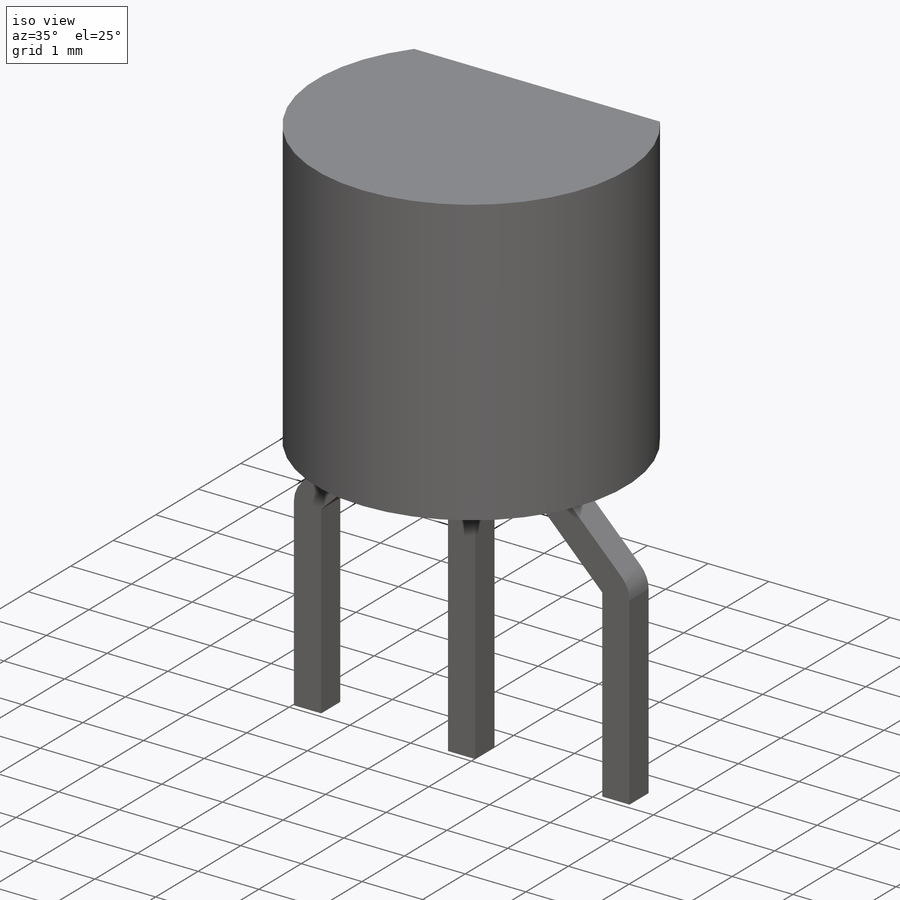
[diagram: iso view]
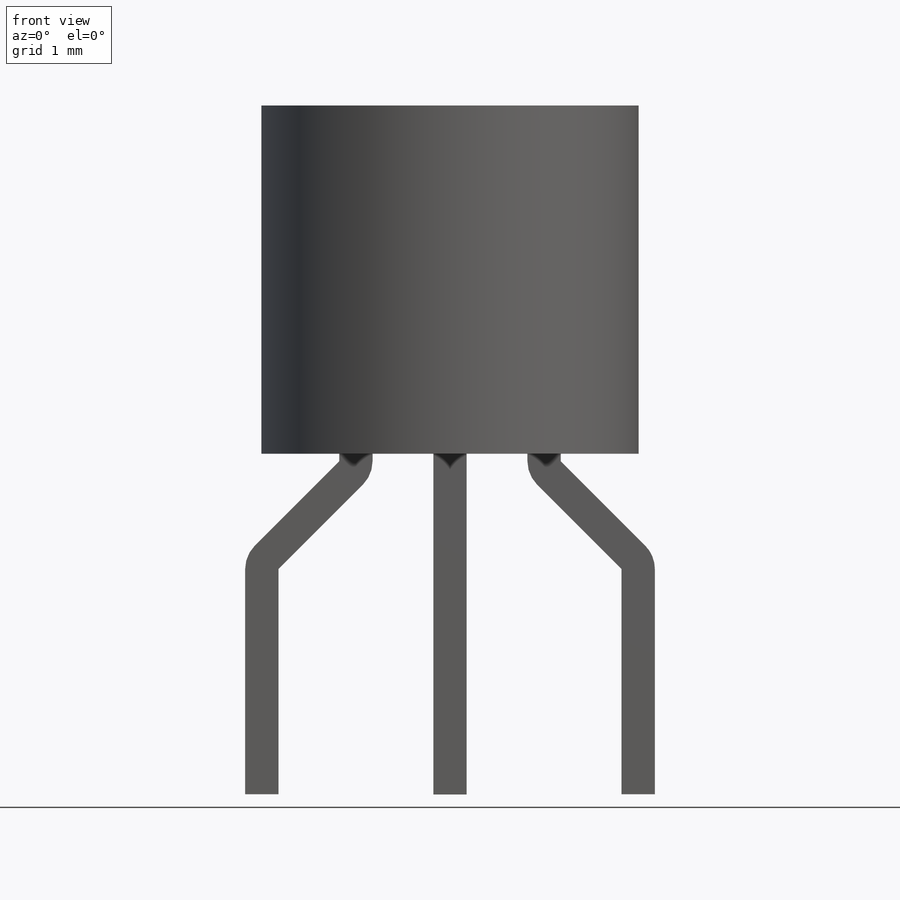
[diagram: front view]
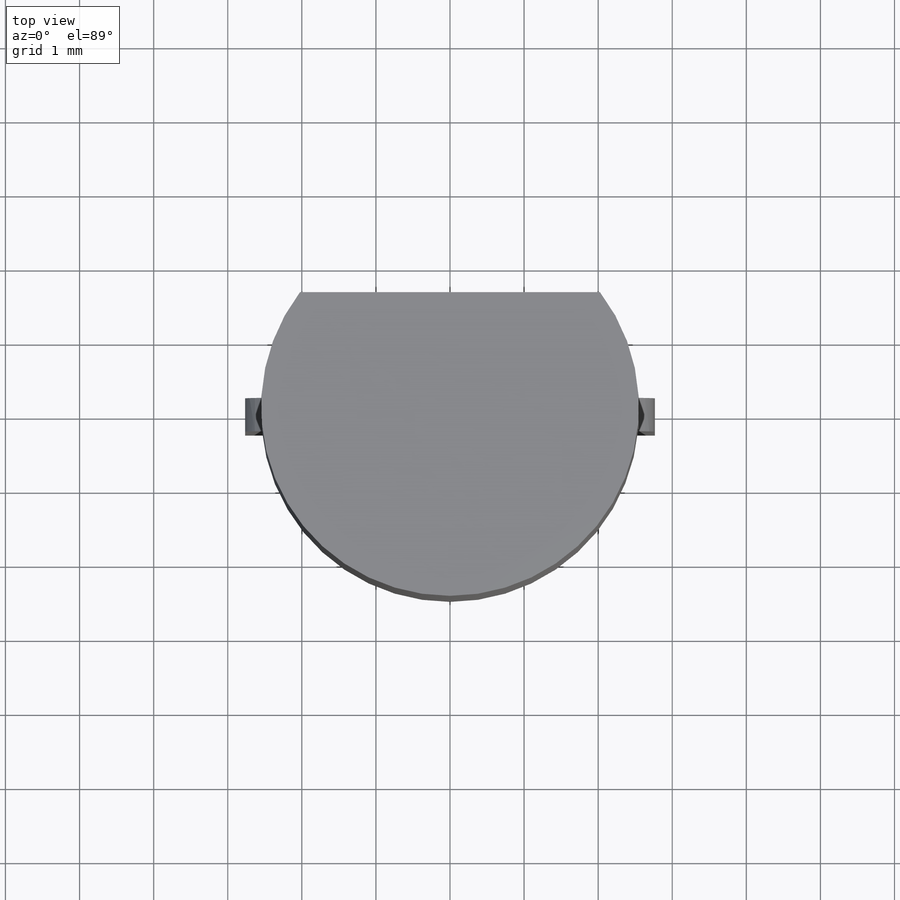
[diagram: top view]
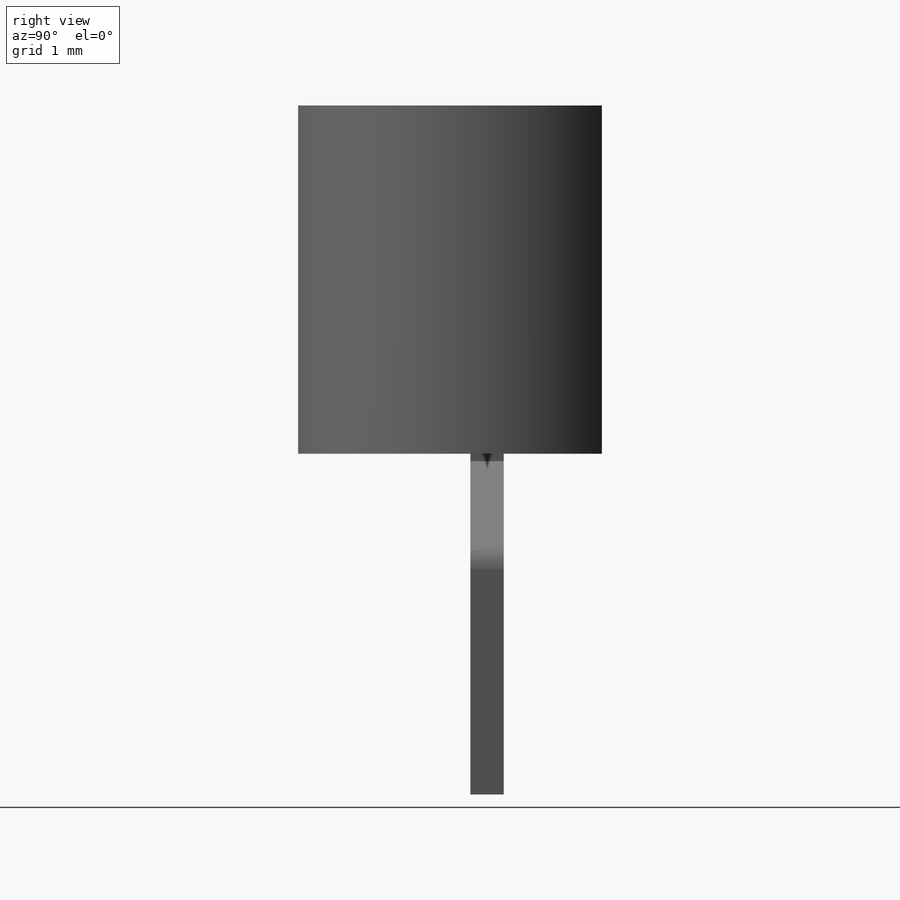
[diagram: right view]
SOLIDWORKS PART (.sldprt)
format: sldprt  version: not decoded by parser v0  size: 255,488 bytes
history: native  units: mm
features: sketch x14, extrude x9, revolve x4, material x1, cut_extrude x1 (+11 scaffold rows collapsed)
feature tree (40):
  scaffold x11  (default folders/planes/origin — collapsed)
  material  "Material <not specified>"
  sketch  "Sketch3"  dims[D1=1.55mm]
  extrude  "Extrude2"  Depth=4.7mm
  cut_extrude  "Extrude3"  [1 undecoded]
  sketch  "Sketch3<3>"
  sketch  "Sketch11"  dims[D1=0.45mm]
  sketch  "Sketch12"  dims[D1=0.45mm]
  sketch  "Sketch13"  dims[D1=0.45mm]
  extrude  "Extrude8"  Depth=0.1mm
  extrude  "Extrude9"  Depth=0.1mm
  extrude  "Extrude10"  Depth=1.59863mm
  sketch  "Sketch32"
  revolve  "Revolve4"  Angle=45deg
  sketch  "Sketch34"
  extrude  "Extrude12"  Depth=1.61mm
  sketch  "Sketch36"
  revolve  "Revolve5"  Angle=45deg
  sketch  "Sketch37"
  extrude  "Extrude13"  Depth=3.04mm
  sketch  "Sketch38"
  revolve  "Revolve6"  Angle=45deg
  sketch  "Sketch39"
  extrude  "Extrude14"  Depth=1.61mm
  sketch  "Sketch40"
  revolve  "Revolve7"  Angle=45deg
  sketch  "Sketch41"
  extrude  "Extrude15"  Depth=3.04mm
  sketch  "Sketch42"
  extrude  "Extrude16"  Depth=3mm
decode coverage: 17 of 28 modeling features carry decoded parameters
note: 1 parameter value undecoded
note: suppression state not decoded; provenance and decode notes live in map.json
